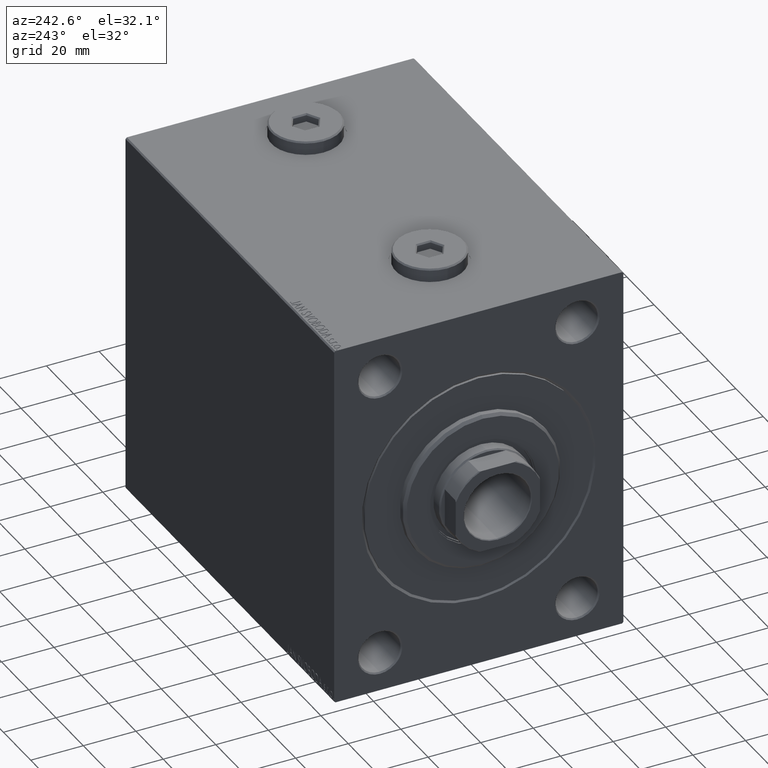
[diagram: clean part render]
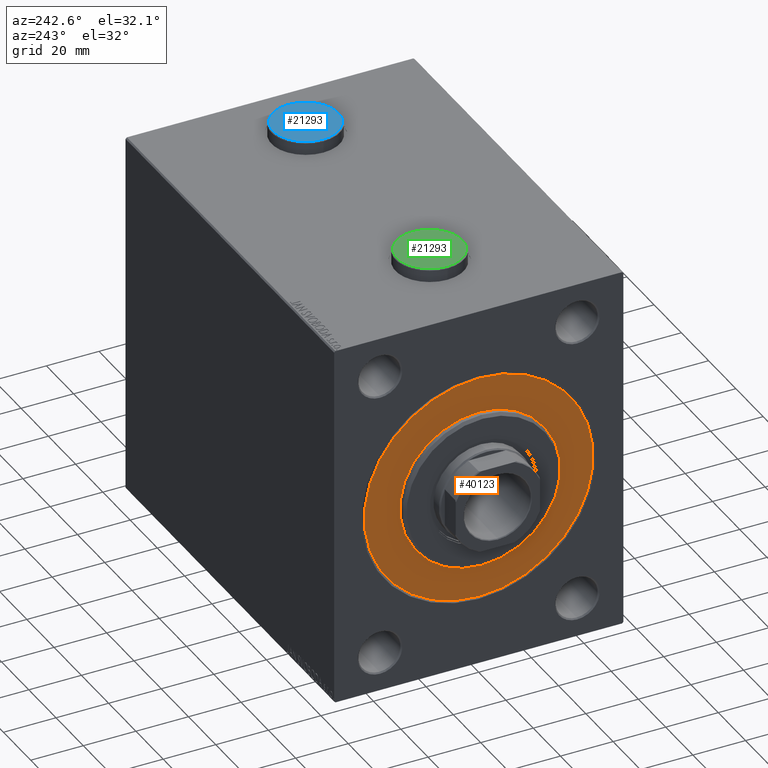
[diagram: same view with three faces highlighted in distinct colors, each labeled with its STEP entity id]
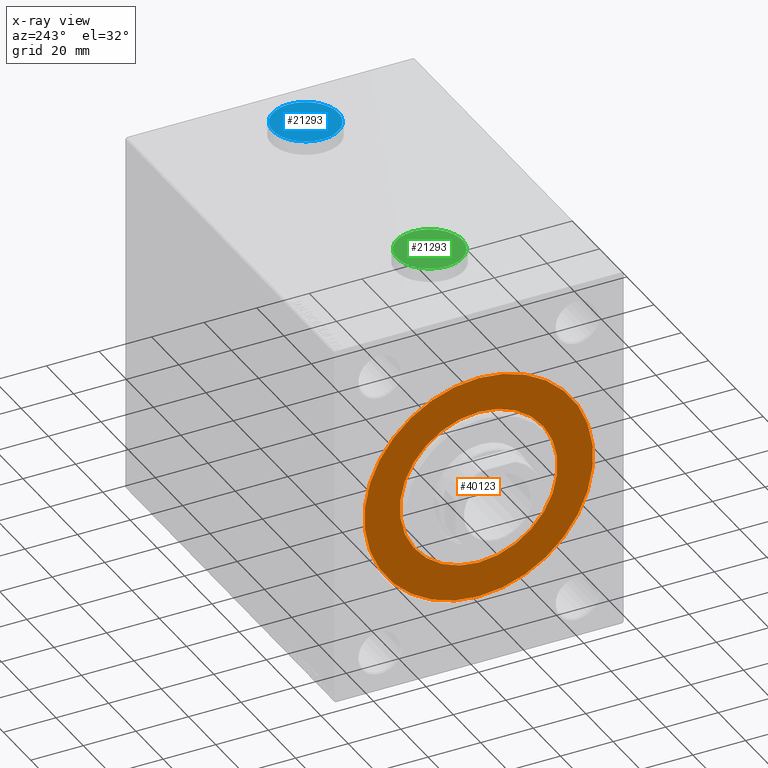
[diagram: x-ray of the same camera — body ghosted, the three highlighted faces saturated]
A machine part, auxiliary view with three faces highlighted in distinct colors.
The next image is the same camera in x-ray (body ghosted, the three faces saturated) — at least one of them is partly hidden behind the body in this view.
Their STEP definitions:

[orange] entity #40123 — the highlighted planar face has unit normal (1, -0, -0).
#199 = PLANE ( 'NONE',  #28215 ) ;
#448 = AXIS2_PLACEMENT_3D ( 'NONE', #761, #25481, #32183 ) ;
#761 = CARTESIAN_POINT ( 'NONE',  ( 0.000000000000000000, 0.000000000000000000, 0.000000000000000000 ) ) ;
#1180 = CIRCLE ( 'NONE', #448, 30.00000000000000000 ) ;
#1457 = EDGE_LOOP ( 'NONE', ( #30136, #39541 ) ) ;
#2246 = EDGE_CURVE ( 'NONE', #6567, #14276, #35780, .T. ) ;
#3200 = VERTEX_POINT ( 'NONE', #27955 ) ;
#3967 = ORIENTED_EDGE ( 'NONE', *, *, #2246, .F. ) ;
#4787 = AXIS2_PLACEMENT_3D ( 'NONE', #23558, #37665, #15731 ) ;
#6408 = EDGE_CURVE ( 'NONE', #3200, #40677, #1180, .T. ) ;
#6537 = CARTESIAN_POINT ( 'NONE',  ( 0.000000000000000000, 5.327213576290986044E-15, 43.50000000000000000 ) ) ;
#6567 = VERTEX_POINT ( 'NONE', #14124 ) ;
#7804 = EDGE_LOOP ( 'NONE', ( #3967, #20824 ) ) ;
#11917 = DIRECTION ( 'NONE',  ( -1.000000000000000000, 0.000000000000000000, 0.000000000000000000 ) ) ;
#13827 = DIRECTION ( 'NONE',  ( 1.000000000000000000, -0.000000000000000000, 0.000000000000000000 ) ) ;
#14124 = CARTESIAN_POINT ( 'NONE',  ( 0.000000000000000000, 0.000000000000000000, -43.50000000000000000 ) ) ;
#14276 = VERTEX_POINT ( 'NONE', #6537 ) ;
#14746 = CARTESIAN_POINT ( 'NONE',  ( 0.000000000000000000, 0.000000000000000000, 0.000000000000000000 ) ) ;
#15731 = DIRECTION ( 'NONE',  ( 0.000000000000000000, 0.000000000000000000, 1.000000000000000000 ) ) ;
#17623 = CIRCLE ( 'NONE', #28683, 30.00000000000000000 ) ;
#17767 = FACE_OUTER_BOUND ( 'NONE', #7804, .T. ) ;
#20824 = ORIENTED_EDGE ( 'NONE', *, *, #45619, .F. ) ;
#23558 = CARTESIAN_POINT ( 'NONE',  ( 0.000000000000000000, 0.000000000000000000, 0.000000000000000000 ) ) ;
#24471 = DIRECTION ( 'NONE',  ( 0.000000000000000000, 0.000000000000000000, 1.000000000000000000 ) ) ;
#25481 = DIRECTION ( 'NONE',  ( 1.000000000000000000, -0.000000000000000000, 0.000000000000000000 ) ) ;
#25994 = EDGE_CURVE ( 'NONE', #40677, #3200, #17623, .T. ) ;
#27931 = CARTESIAN_POINT ( 'NONE',  ( 0.000000000000000000, 0.000000000000000000, 0.000000000000000000 ) ) ;
#27955 = CARTESIAN_POINT ( 'NONE',  ( 0.000000000000000000, 3.673940397442059178E-15, -30.00000000000000000 ) ) ;
#28215 = AXIS2_PLACEMENT_3D ( 'NONE', #27931, #32553, #24471 ) ;
#28371 = AXIS2_PLACEMENT_3D ( 'NONE', #30545, #11917, #41626 ) ;
#28683 = AXIS2_PLACEMENT_3D ( 'NONE', #14746, #13827, #42024 ) ;
#30136 = ORIENTED_EDGE ( 'NONE', *, *, #25994, .F. ) ;
#30273 = CARTESIAN_POINT ( 'NONE',  ( 0.000000000000000000, 0.000000000000000000, 30.00000000000000000 ) ) ;
#30545 = CARTESIAN_POINT ( 'NONE',  ( 0.000000000000000000, 0.000000000000000000, 0.000000000000000000 ) ) ;
#32183 = DIRECTION ( 'NONE',  ( 0.000000000000000000, 0.000000000000000000, -1.000000000000000000 ) ) ;
#32553 = DIRECTION ( 'NONE',  ( -1.000000000000000000, 0.000000000000000000, 0.000000000000000000 ) ) ;
#35780 = CIRCLE ( 'NONE', #4787, 43.50000000000000000 ) ;
#37665 = DIRECTION ( 'NONE',  ( -1.000000000000000000, 0.000000000000000000, 0.000000000000000000 ) ) ;
#39541 = ORIENTED_EDGE ( 'NONE', *, *, #6408, .F. ) ;
#40123 = ADVANCED_FACE ( 'NONE', ( #42030, #17767 ), #199, .F. ) ;
#40677 = VERTEX_POINT ( 'NONE', #30273 ) ;
#41626 = DIRECTION ( 'NONE',  ( 0.000000000000000000, 0.000000000000000000, 1.000000000000000000 ) ) ;
#42024 = DIRECTION ( 'NONE',  ( 0.000000000000000000, 0.000000000000000000, -1.000000000000000000 ) ) ;
#42030 = FACE_BOUND ( 'NONE', #1457, .T. ) ;
#42289 = CIRCLE ( 'NONE', #28371, 43.50000000000000000 ) ;
#45619 = EDGE_CURVE ( 'NONE', #14276, #6567, #42289, .T. ) ;

[blue] entity #21293 — the highlighted planar face has unit normal (0, 0, 1).
#827 = DIRECTION ( 'NONE',  ( 0.8660254037844387076, -0.4999999999999998890, 0.000000000000000000 ) ) ;
#1706 = EDGE_LOOP ( 'NONE', ( #19588, #43407 ) ) ;
#2040 = LINE ( 'NONE', #23285, #42145 ) ;
#2609 = VERTEX_POINT ( 'NONE', #41992 ) ;
#2658 = DIRECTION ( 'NONE',  ( -0.8660254037844387076, -0.4999999999999998335, 0.000000000000000000 ) ) ;
#4061 = LINE ( 'NONE', #12075, #9663 ) ;
#6445 = EDGE_CURVE ( 'NONE', #45040, #12638, #39820, .T. ) ;
#6748 = LINE ( 'NONE', #20588, #22308 ) ;
#7575 = DIRECTION ( 'NONE',  ( 1.000000000000000000, 0.000000000000000000, -0.000000000000000000 ) ) ;
#7628 = AXIS2_PLACEMENT_3D ( 'NONE', #33857, #16293, #34309 ) ;
#7705 = VERTEX_POINT ( 'NONE', #15887 ) ;
#8178 = VERTEX_POINT ( 'NONE', #11412 ) ;
#8334 = ORIENTED_EDGE ( 'NONE', *, *, #36706, .T. ) ;
#9050 = CARTESIAN_POINT ( 'NONE',  ( 0.000000000000000000, 0.000000000000000000, 5.000000000000000000 ) ) ;
#9449 = CARTESIAN_POINT ( 'NONE',  ( 4.833333333333341919, 2.790526301083194216, 5.000000000000000000 ) ) ;
#9663 = VECTOR ( 'NONE', #827, 1000.000000000000000 ) ;
#10713 = EDGE_CURVE ( 'NONE', #12638, #7705, #23907, .T. ) ;
#11412 = CARTESIAN_POINT ( 'NONE',  ( 1.144664513637780713E-15, 5.581052602166389320, 5.000000000000000000 ) ) ;
#11840 = DIRECTION ( 'NONE',  ( 0.8660254037844388186, 0.4999999999999997780, 0.000000000000000000 ) ) ;
#12075 = CARTESIAN_POINT ( 'NONE',  ( 4.583333333333339255, 2.934863868380602092, 5.000000000000000000 ) ) ;
#12373 = EDGE_LOOP ( 'NONE', ( #41834, #25158, #8334, #42726, #14023, #24650 ) ) ;
#12471 = CARTESIAN_POINT ( 'NONE',  ( -4.833333333333340143, -2.790526301083195104, 5.000000000000000000 ) ) ;
#12638 = VERTEX_POINT ( 'NONE', #21137 ) ;
#13282 = CARTESIAN_POINT ( 'NONE',  ( 0.2500000000000015543, -5.436715034868981888, 5.000000000000000000 ) ) ;
#13540 = VERTEX_POINT ( 'NONE', #23880 ) ;
#13895 = DIRECTION ( 'NONE',  ( 0.000000000000000000, 1.000000000000000000, 0.000000000000000000 ) ) ;
#14023 = ORIENTED_EDGE ( 'NONE', *, *, #10713, .T. ) ;
#15880 = VERTEX_POINT ( 'NONE', #35086 ) ;
#15887 = CARTESIAN_POINT ( 'NONE',  ( -1.883403334290581714E-15, -5.581052602166390209, 5.000000000000000000 ) ) ;
#16293 = DIRECTION ( 'NONE',  ( 0.000000000000000000, 0.000000000000000000, 1.000000000000000000 ) ) ;
#16900 = AXIS2_PLACEMENT_3D ( 'NONE', #41489, #23926, #45420 ) ;
#17906 = EDGE_CURVE ( 'NONE', #13540, #15880, #34603, .T. ) ;
#19588 = ORIENTED_EDGE ( 'NONE', *, *, #42794, .T. ) ;
#20588 = CARTESIAN_POINT ( 'NONE',  ( -4.833333333333340143, 2.501851166488380240, 5.000000000000000000 ) ) ;
#21137 = CARTESIAN_POINT ( 'NONE',  ( 4.833333333333341919, -2.790526301083194216, 5.000000000000000000 ) ) ;
#21164 = EDGE_CURVE ( 'NONE', #2609, #8178, #43275, .T. ) ;
#21293 = ADVANCED_FACE ( 'NONE', ( #26609, #27053 ), #30522, .T. ) ;
#21442 = AXIS2_PLACEMENT_3D ( 'NONE', #9050, #44628, #7575 ) ;
#22308 = VECTOR ( 'NONE', #13895, 1000.000000000000000 ) ;
#22693 = CARTESIAN_POINT ( 'NONE',  ( 4.833333333333341919, -2.501851166488378908, 5.000000000000000000 ) ) ;
#22893 = EDGE_CURVE ( 'NONE', #7705, #25887, #2040, .T. ) ;
#23285 = CARTESIAN_POINT ( 'NONE',  ( -4.583333333333337478, -2.934863868380603424, 5.000000000000000000 ) ) ;
#23880 = CARTESIAN_POINT ( 'NONE',  ( 12.50000000000001066, 1.561424668912876097E-15, 5.000000000000000000 ) ) ;
#23907 = LINE ( 'NONE', #13282, #45467 ) ;
#23926 = DIRECTION ( 'NONE',  ( 0.000000000000000000, 0.000000000000000000, 1.000000000000000000 ) ) ;
#24650 = ORIENTED_EDGE ( 'NONE', *, *, #22893, .T. ) ;
#25158 = ORIENTED_EDGE ( 'NONE', *, *, #21164, .T. ) ;
#25887 = VERTEX_POINT ( 'NONE', #12471 ) ;
#26609 = FACE_BOUND ( 'NONE', #12373, .T. ) ;
#27053 = FACE_OUTER_BOUND ( 'NONE', #1706, .T. ) ;
#27345 = VECTOR ( 'NONE', #11840, 1000.000000000000114 ) ;
#27538 = CIRCLE ( 'NONE', #7628, 12.50000000000001066 ) ;
#29776 = DIRECTION ( 'NONE',  ( -0.8660254037844385966, 0.5000000000000001110, 0.000000000000000000 ) ) ;
#30522 = PLANE ( 'NONE',  #21442 ) ;
#30678 = VECTOR ( 'NONE', #36117, 1000.000000000000000 ) ;
#33857 = CARTESIAN_POINT ( 'NONE',  ( 0.000000000000000000, 0.000000000000000000, 5.000000000000000000 ) ) ;
#34309 = DIRECTION ( 'NONE',  ( 1.000000000000000000, 0.000000000000000000, 0.000000000000000000 ) ) ;
#34603 = CIRCLE ( 'NONE', #16900, 12.50000000000001066 ) ;
#35086 = CARTESIAN_POINT ( 'NONE',  ( -12.50000000000001066, 0.000000000000000000, 5.000000000000000000 ) ) ;
#36117 = DIRECTION ( 'NONE',  ( 0.000000000000000000, -1.000000000000000000, 0.000000000000000000 ) ) ;
#36706 = EDGE_CURVE ( 'NONE', #8178, #45040, #4061, .T. ) ;
#39682 = EDGE_CURVE ( 'NONE', #25887, #2609, #6748, .T. ) ;
#39820 = LINE ( 'NONE', #22693, #30678 ) ;
#41489 = CARTESIAN_POINT ( 'NONE',  ( 0.000000000000000000, 0.000000000000000000, 5.000000000000000000 ) ) ;
#41834 = ORIENTED_EDGE ( 'NONE', *, *, #39682, .T. ) ;
#41992 = CARTESIAN_POINT ( 'NONE',  ( -4.833333333333340143, 2.790526301083195104, 5.000000000000000000 ) ) ;
#42145 = VECTOR ( 'NONE', #29776, 1000.000000000000114 ) ;
#42726 = ORIENTED_EDGE ( 'NONE', *, *, #6445, .T. ) ;
#42794 = EDGE_CURVE ( 'NONE', #15880, #13540, #27538, .T. ) ;
#43275 = LINE ( 'NONE', #43503, #27345 ) ;
#43407 = ORIENTED_EDGE ( 'NONE', *, *, #17906, .T. ) ;
#43503 = CARTESIAN_POINT ( 'NONE',  ( -0.2500000000000021094, 5.436715034868981000, 5.000000000000000000 ) ) ;
#44628 = DIRECTION ( 'NONE',  ( 0.000000000000000000, 0.000000000000000000, 1.000000000000000000 ) ) ;
#45040 = VERTEX_POINT ( 'NONE', #9449 ) ;
#45420 = DIRECTION ( 'NONE',  ( 1.000000000000000000, 0.000000000000000000, 0.000000000000000000 ) ) ;
#45467 = VECTOR ( 'NONE', #2658, 1000.000000000000000 ) ;

[green] entity #21293 — the highlighted planar face has unit normal (0, 0, 1).
#827 = DIRECTION ( 'NONE',  ( 0.8660254037844387076, -0.4999999999999998890, 0.000000000000000000 ) ) ;
#1706 = EDGE_LOOP ( 'NONE', ( #19588, #43407 ) ) ;
#2040 = LINE ( 'NONE', #23285, #42145 ) ;
#2609 = VERTEX_POINT ( 'NONE', #41992 ) ;
#2658 = DIRECTION ( 'NONE',  ( -0.8660254037844387076, -0.4999999999999998335, 0.000000000000000000 ) ) ;
#4061 = LINE ( 'NONE', #12075, #9663 ) ;
#6445 = EDGE_CURVE ( 'NONE', #45040, #12638, #39820, .T. ) ;
#6748 = LINE ( 'NONE', #20588, #22308 ) ;
#7575 = DIRECTION ( 'NONE',  ( 1.000000000000000000, 0.000000000000000000, -0.000000000000000000 ) ) ;
#7628 = AXIS2_PLACEMENT_3D ( 'NONE', #33857, #16293, #34309 ) ;
#7705 = VERTEX_POINT ( 'NONE', #15887 ) ;
#8178 = VERTEX_POINT ( 'NONE', #11412 ) ;
#8334 = ORIENTED_EDGE ( 'NONE', *, *, #36706, .T. ) ;
#9050 = CARTESIAN_POINT ( 'NONE',  ( 0.000000000000000000, 0.000000000000000000, 5.000000000000000000 ) ) ;
#9449 = CARTESIAN_POINT ( 'NONE',  ( 4.833333333333341919, 2.790526301083194216, 5.000000000000000000 ) ) ;
#9663 = VECTOR ( 'NONE', #827, 1000.000000000000000 ) ;
#10713 = EDGE_CURVE ( 'NONE', #12638, #7705, #23907, .T. ) ;
#11412 = CARTESIAN_POINT ( 'NONE',  ( 1.144664513637780713E-15, 5.581052602166389320, 5.000000000000000000 ) ) ;
#11840 = DIRECTION ( 'NONE',  ( 0.8660254037844388186, 0.4999999999999997780, 0.000000000000000000 ) ) ;
#12075 = CARTESIAN_POINT ( 'NONE',  ( 4.583333333333339255, 2.934863868380602092, 5.000000000000000000 ) ) ;
#12373 = EDGE_LOOP ( 'NONE', ( #41834, #25158, #8334, #42726, #14023, #24650 ) ) ;
#12471 = CARTESIAN_POINT ( 'NONE',  ( -4.833333333333340143, -2.790526301083195104, 5.000000000000000000 ) ) ;
#12638 = VERTEX_POINT ( 'NONE', #21137 ) ;
#13282 = CARTESIAN_POINT ( 'NONE',  ( 0.2500000000000015543, -5.436715034868981888, 5.000000000000000000 ) ) ;
#13540 = VERTEX_POINT ( 'NONE', #23880 ) ;
#13895 = DIRECTION ( 'NONE',  ( 0.000000000000000000, 1.000000000000000000, 0.000000000000000000 ) ) ;
#14023 = ORIENTED_EDGE ( 'NONE', *, *, #10713, .T. ) ;
#15880 = VERTEX_POINT ( 'NONE', #35086 ) ;
#15887 = CARTESIAN_POINT ( 'NONE',  ( -1.883403334290581714E-15, -5.581052602166390209, 5.000000000000000000 ) ) ;
#16293 = DIRECTION ( 'NONE',  ( 0.000000000000000000, 0.000000000000000000, 1.000000000000000000 ) ) ;
#16900 = AXIS2_PLACEMENT_3D ( 'NONE', #41489, #23926, #45420 ) ;
#17906 = EDGE_CURVE ( 'NONE', #13540, #15880, #34603, .T. ) ;
#19588 = ORIENTED_EDGE ( 'NONE', *, *, #42794, .T. ) ;
#20588 = CARTESIAN_POINT ( 'NONE',  ( -4.833333333333340143, 2.501851166488380240, 5.000000000000000000 ) ) ;
#21137 = CARTESIAN_POINT ( 'NONE',  ( 4.833333333333341919, -2.790526301083194216, 5.000000000000000000 ) ) ;
#21164 = EDGE_CURVE ( 'NONE', #2609, #8178, #43275, .T. ) ;
#21293 = ADVANCED_FACE ( 'NONE', ( #26609, #27053 ), #30522, .T. ) ;
#21442 = AXIS2_PLACEMENT_3D ( 'NONE', #9050, #44628, #7575 ) ;
#22308 = VECTOR ( 'NONE', #13895, 1000.000000000000000 ) ;
#22693 = CARTESIAN_POINT ( 'NONE',  ( 4.833333333333341919, -2.501851166488378908, 5.000000000000000000 ) ) ;
#22893 = EDGE_CURVE ( 'NONE', #7705, #25887, #2040, .T. ) ;
#23285 = CARTESIAN_POINT ( 'NONE',  ( -4.583333333333337478, -2.934863868380603424, 5.000000000000000000 ) ) ;
#23880 = CARTESIAN_POINT ( 'NONE',  ( 12.50000000000001066, 1.561424668912876097E-15, 5.000000000000000000 ) ) ;
#23907 = LINE ( 'NONE', #13282, #45467 ) ;
#23926 = DIRECTION ( 'NONE',  ( 0.000000000000000000, 0.000000000000000000, 1.000000000000000000 ) ) ;
#24650 = ORIENTED_EDGE ( 'NONE', *, *, #22893, .T. ) ;
#25158 = ORIENTED_EDGE ( 'NONE', *, *, #21164, .T. ) ;
#25887 = VERTEX_POINT ( 'NONE', #12471 ) ;
#26609 = FACE_BOUND ( 'NONE', #12373, .T. ) ;
#27053 = FACE_OUTER_BOUND ( 'NONE', #1706, .T. ) ;
#27345 = VECTOR ( 'NONE', #11840, 1000.000000000000114 ) ;
#27538 = CIRCLE ( 'NONE', #7628, 12.50000000000001066 ) ;
#29776 = DIRECTION ( 'NONE',  ( -0.8660254037844385966, 0.5000000000000001110, 0.000000000000000000 ) ) ;
#30522 = PLANE ( 'NONE',  #21442 ) ;
#30678 = VECTOR ( 'NONE', #36117, 1000.000000000000000 ) ;
#33857 = CARTESIAN_POINT ( 'NONE',  ( 0.000000000000000000, 0.000000000000000000, 5.000000000000000000 ) ) ;
#34309 = DIRECTION ( 'NONE',  ( 1.000000000000000000, 0.000000000000000000, 0.000000000000000000 ) ) ;
#34603 = CIRCLE ( 'NONE', #16900, 12.50000000000001066 ) ;
#35086 = CARTESIAN_POINT ( 'NONE',  ( -12.50000000000001066, 0.000000000000000000, 5.000000000000000000 ) ) ;
#36117 = DIRECTION ( 'NONE',  ( 0.000000000000000000, -1.000000000000000000, 0.000000000000000000 ) ) ;
#36706 = EDGE_CURVE ( 'NONE', #8178, #45040, #4061, .T. ) ;
#39682 = EDGE_CURVE ( 'NONE', #25887, #2609, #6748, .T. ) ;
#39820 = LINE ( 'NONE', #22693, #30678 ) ;
#41489 = CARTESIAN_POINT ( 'NONE',  ( 0.000000000000000000, 0.000000000000000000, 5.000000000000000000 ) ) ;
#41834 = ORIENTED_EDGE ( 'NONE', *, *, #39682, .T. ) ;
#41992 = CARTESIAN_POINT ( 'NONE',  ( -4.833333333333340143, 2.790526301083195104, 5.000000000000000000 ) ) ;
#42145 = VECTOR ( 'NONE', #29776, 1000.000000000000114 ) ;
#42726 = ORIENTED_EDGE ( 'NONE', *, *, #6445, .T. ) ;
#42794 = EDGE_CURVE ( 'NONE', #15880, #13540, #27538, .T. ) ;
#43275 = LINE ( 'NONE', #43503, #27345 ) ;
#43407 = ORIENTED_EDGE ( 'NONE', *, *, #17906, .T. ) ;
#43503 = CARTESIAN_POINT ( 'NONE',  ( -0.2500000000000021094, 5.436715034868981000, 5.000000000000000000 ) ) ;
#44628 = DIRECTION ( 'NONE',  ( 0.000000000000000000, 0.000000000000000000, 1.000000000000000000 ) ) ;
#45040 = VERTEX_POINT ( 'NONE', #9449 ) ;
#45420 = DIRECTION ( 'NONE',  ( 1.000000000000000000, 0.000000000000000000, 0.000000000000000000 ) ) ;
#45467 = VECTOR ( 'NONE', #2658, 1000.000000000000000 ) ;